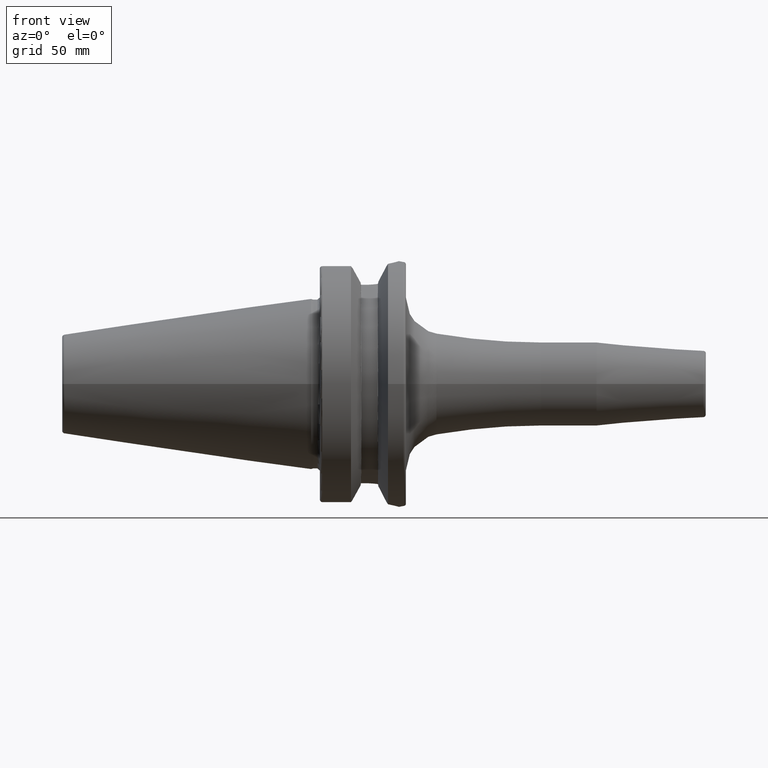
[diagram: clean part render]
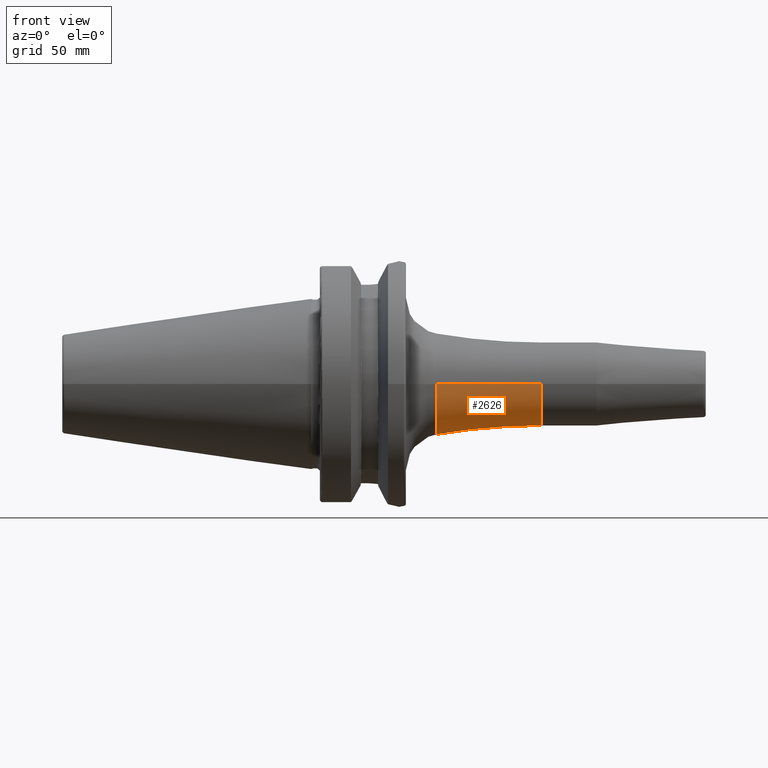
[diagram: same view with one face highlighted and labeled with its STEP entity id]
A machine part, front view. The second image highlights one B-rep face of the part: STEP entity #2626.
In plain terms, the highlighted toroidal blend (fillet) surface has major radius 267 mm and minor (blend) radius 250 mm.
Its self-contained STEP definition (entity closure, byte-faithful):
#859=CARTESIAN_POINT('',(5.044680851064E1,0.E0,0.E0));
#860=DIRECTION('',(1.E0,0.E0,0.E0));
#861=DIRECTION('',(0.E0,-1.E0,0.E0));
#862=AXIS2_PLACEMENT_3D('',#859,#860,#861);
#864=CARTESIAN_POINT('',(9.3E1,-2.67E2,-6.539613907447E-14));
#865=DIRECTION('',(0.E0,0.E0,1.E0));
#866=DIRECTION('',(0.E0,1.E0,0.E0));
#867=AXIS2_PLACEMENT_3D('',#864,#865,#866);
#869=CARTESIAN_POINT('',(9.3E1,2.67E2,3.269806953723E-14));
#870=DIRECTION('',(0.E0,0.E0,-1.E0));
#871=DIRECTION('',(0.E0,-1.E0,0.E0));
#872=AXIS2_PLACEMENT_3D('',#869,#870,#871);
#874=CARTESIAN_POINT('',(9.3E1,0.E0,0.E0));
#875=DIRECTION('',(1.E0,0.E0,0.E0));
#876=DIRECTION('',(0.E0,-1.E0,0.E0));
#877=AXIS2_PLACEMENT_3D('',#874,#875,#876);
#1431=CARTESIAN_POINT('',(9.3E1,1.7E1,0.E0));
#1432=CARTESIAN_POINT('',(9.3E1,-1.7E1,0.E0));
#1433=VERTEX_POINT('',#1431);
#1434=VERTEX_POINT('',#1432);
#1439=CARTESIAN_POINT('',(5.044680851064E1,-2.064816644874E1,0.E0));
#1440=CARTESIAN_POINT('',(5.044680851064E1,2.064816644874E1,0.E0));
#1441=VERTEX_POINT('',#1439);
#1442=VERTEX_POINT('',#1440);
#2614=CARTESIAN_POINT('',(9.3E1,0.E0,0.E0));
#2615=DIRECTION('',(1.E0,0.E0,0.E0));
#2616=DIRECTION('',(0.E0,-1.E0,0.E0));
#2617=AXIS2_PLACEMENT_3D('',#2614,#2615,#2616);
#2618=TOROIDAL_SURFACE('',#2617,2.67E2,2.5E2);
#2619=ORIENTED_EDGE('',*,*,#2579,.F.);
#2620=ORIENTED_EDGE('',*,*,#2609,.F.);
#2622=ORIENTED_EDGE('',*,*,#2621,.T.);
#2623=ORIENTED_EDGE('',*,*,#2605,.T.);
#2624=EDGE_LOOP('',(#2619,#2620,#2622,#2623));
#2625=FACE_OUTER_BOUND('',#2624,.F.);
#2626=ADVANCED_FACE('',(#2625),#2618,.F.);
#863=CIRCLE('',#862,2.064816644874E1);
#868=CIRCLE('',#867,2.5E2);
#873=CIRCLE('',#872,2.5E2);
#878=CIRCLE('',#877,1.7E1);
#2579=EDGE_CURVE('',#1441,#1442,#863,.T.);
#2605=EDGE_CURVE('',#1433,#1442,#873,.T.);
#2609=EDGE_CURVE('',#1434,#1441,#868,.T.);
#2621=EDGE_CURVE('',#1434,#1433,#878,.T.);